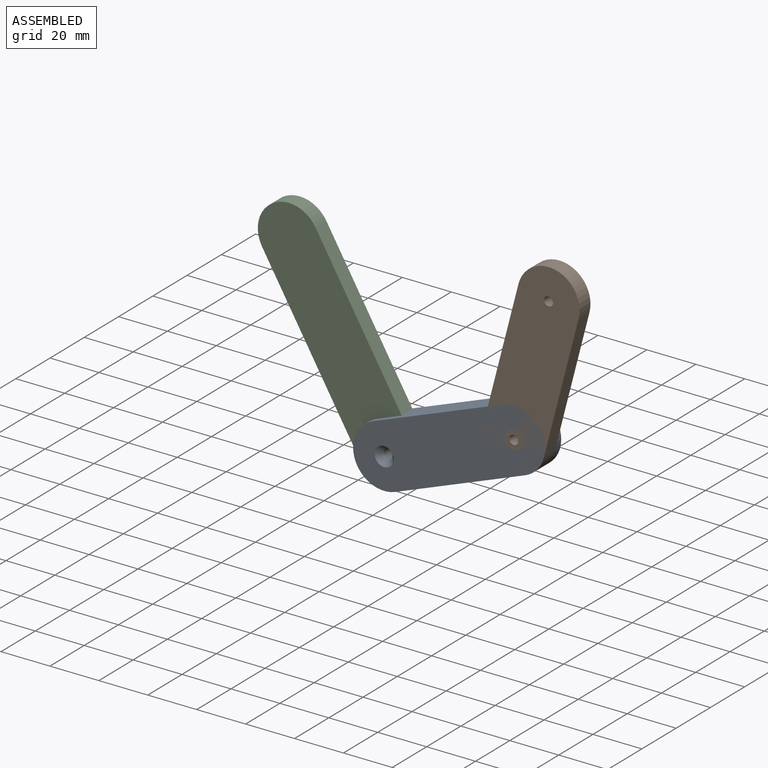
[diagram: assembled view]
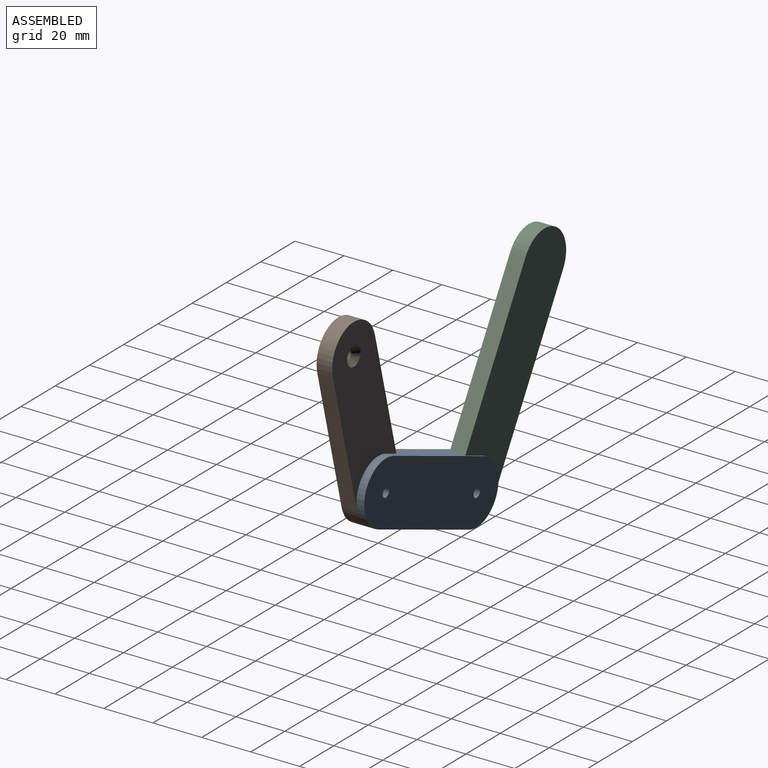
[diagram: assembled view, second angle]
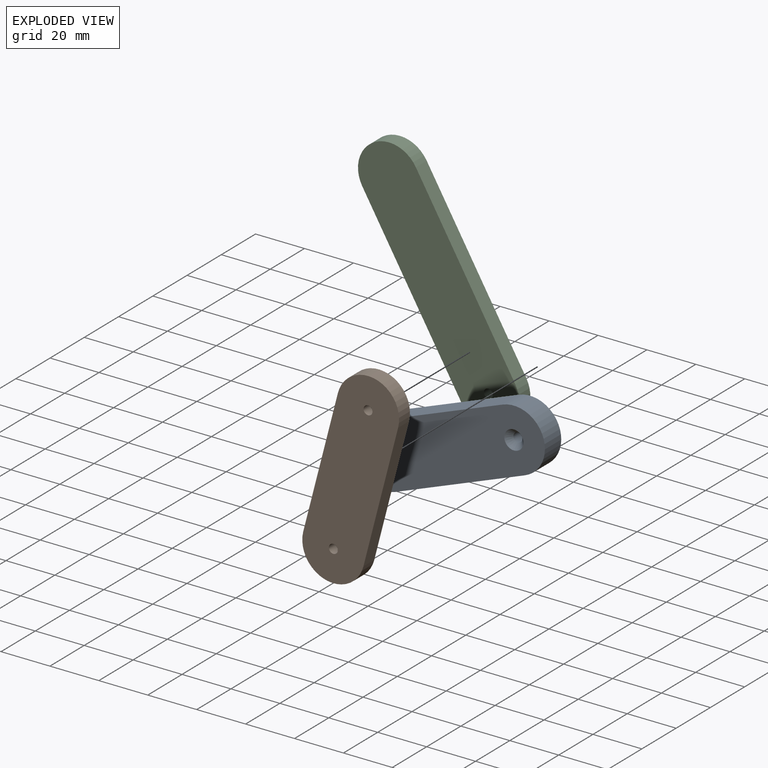
[diagram: exploded view]
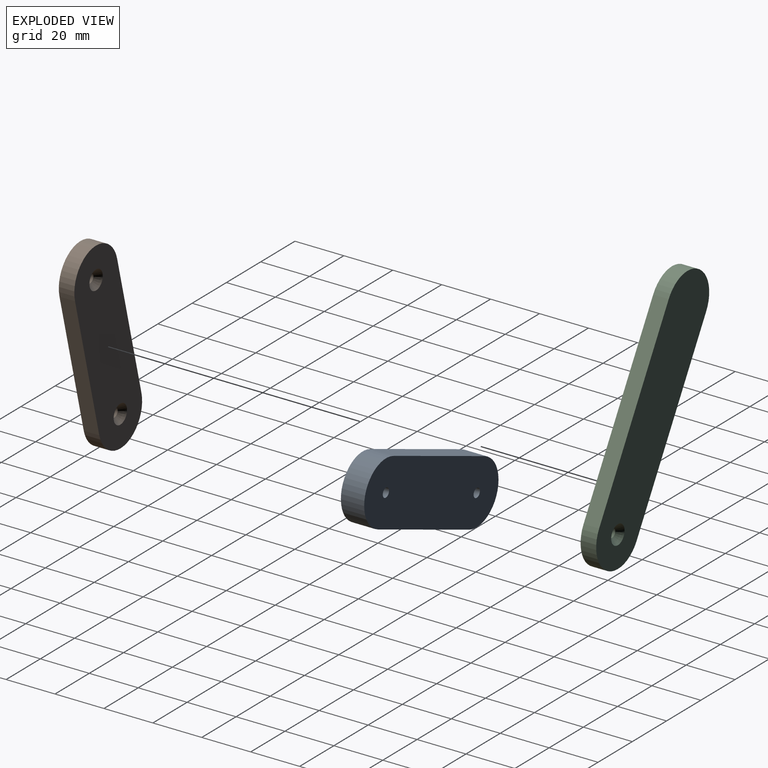
[diagram: exploded view, second angle]
ASSEMBLY  parts=3 mates=2
PART A: 10 faces, bbox 78.4x9.5x45.7 mm
  f0: plane 53.03x20.34mm, normal (0.36,0,-0.93), area 541mm2, adj f1,f3,f4,f5
  f1: cylinder r=12.7mm len=24.56mm, axis (0,-1,0), area 380mm2, adj f0,f2,f4,f5
  f2: plane 53.03x20.34mm, normal (-0.36,0,0.93), area 541mm2, adj f1,f3,f4,f5
  f3: cylinder r=12.7mm len=24.56mm, axis (0,-1,0), area 380mm2, adj f0,f2,f4,f5
  f4: plane 78.43x45.74mm, normal (0,1,0), area 1928.3mm2, adj f0,f1,f2,f3,f6,f8
  f5: plane 78.43x45.74mm, normal (0,-1,0), area 1853.8mm2, adj f0,f1,f2,f3,f7,f9
  f6: cylinder r=1.83mm len=7.14mm, axis (0,-1,0), area 82.1mm2, adj f4,f7
  f7: cone r=1.83mm half-angle=41deg, axis (0,-1,0), area 56.8mm2, adj f5,f6
  f8: cylinder r=1.83mm len=7.14mm, axis (0,-1,0), area 82.1mm2, adj f4,f9
  f9: cone r=1.83mm half-angle=41deg, axis (0,-1,0), area 56.8mm2, adj f5,f8
PART B: 10 faces, bbox 78.4x6.4x45.7 mm
  f0: plane 53.03x20.34mm, normal (0.36,0,0.93), area 360.6mm2, adj f1,f3,f4,f5
  f1: cylinder r=12.7mm len=24.56mm, axis (0,1,0), area 253.4mm2, adj f0,f2,f4,f5
  f2: plane 53.03x20.34mm, normal (-0.36,0,-0.93), area 360.6mm2, adj f1,f3,f4,f5
  f3: cylinder r=12.7mm len=24.56mm, axis (0,1,0), area 253.4mm2, adj f0,f2,f4,f5
  f4: plane 78.43x45.74mm, normal (0,-1,0), area 1928.3mm2, adj f0,f1,f2,f3,f6,f8
  f5: plane 78.43x45.74mm, normal (0,1,0), area 1853.8mm2, adj f0,f1,f2,f3,f7,f9
  f6: cylinder r=1.83mm len=3.97mm, axis (0,1,0), area 45.6mm2, adj f4,f7
  f7: cone r=1.83mm half-angle=41deg, axis (0,1,0), area 56.8mm2, adj f5,f6
  f8: cylinder r=1.83mm len=3.97mm, axis (0,1,0), area 45.6mm2, adj f4,f9
  f9: cone r=1.83mm half-angle=41deg, axis (0,1,0), area 56.8mm2, adj f5,f8
PART C: 8 faces, bbox 87.5x6.4x76.4 mm
  f0: plane 62.06x50.98mm, normal (-0.63,0,-0.77), area 510mm2, adj f1,f3,f4,f5
  f1: cylinder r=12.7mm len=22.51mm, axis (0,1,0), area 253.4mm2, adj f0,f2,f4,f5
  f2: plane 62.06x50.98mm, normal (0.63,0,0.77), area 510mm2, adj f1,f3,f4,f5
  f3: cylinder r=12.7mm len=22.51mm, axis (0,1,0), area 253.4mm2, adj f0,f2,f4,f5
  f4: plane 87.46x76.38mm, normal (0,-1,0), area 2536.2mm2, adj f0,f1,f2,f3,f6
  f5: plane 87.46x76.38mm, normal (0,1,0), area 2498.9mm2, adj f0,f1,f2,f3,f7
  f6: cylinder r=1.83mm len=3.97mm, axis (0,1,0), area 45.6mm2, adj f4,f7
  f7: cone r=1.83mm half-angle=41deg, axis (0,1,0), area 56.8mm2, adj f5,f6
PLACE A t=(61.23,33.5,-29.35)mm fixed
PLACE B rot(axis=(0,-1,0),96.5deg) t=(22.39,39.85,45.98)mm
PLACE C rot(axis=(0,1,0),20.2deg) t=(54.71,42.23,-65.97)mm
MATE revolute A.f1 <-> B.f1  axis (0,-1,0) through (8.2,33.5,-9.01)mm
MATE revolute C.f1 <-> A.f8  axis (0,-1,0) through (-44.83,35.88,-29.35)mm
